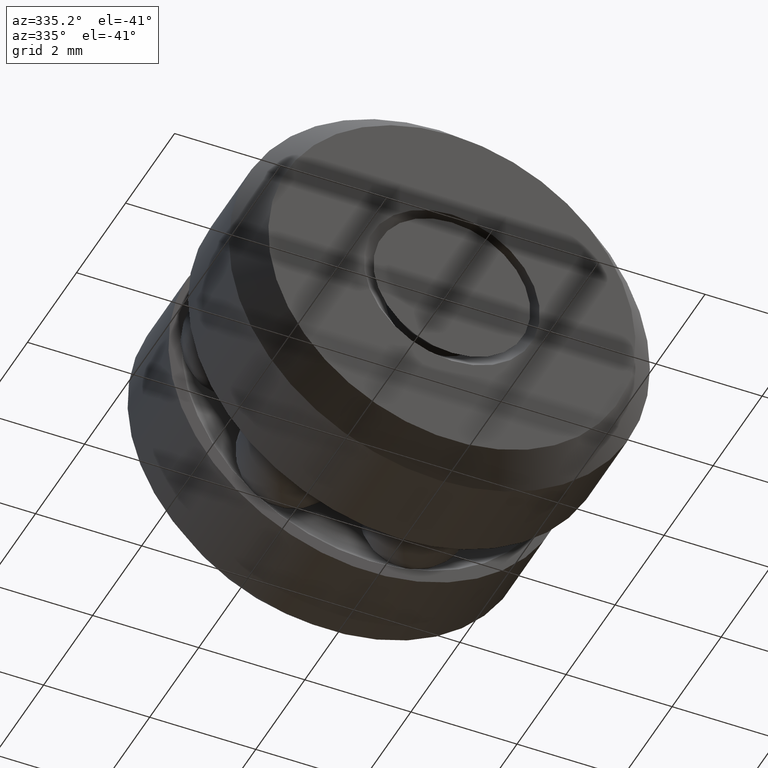
[diagram: clean part render]
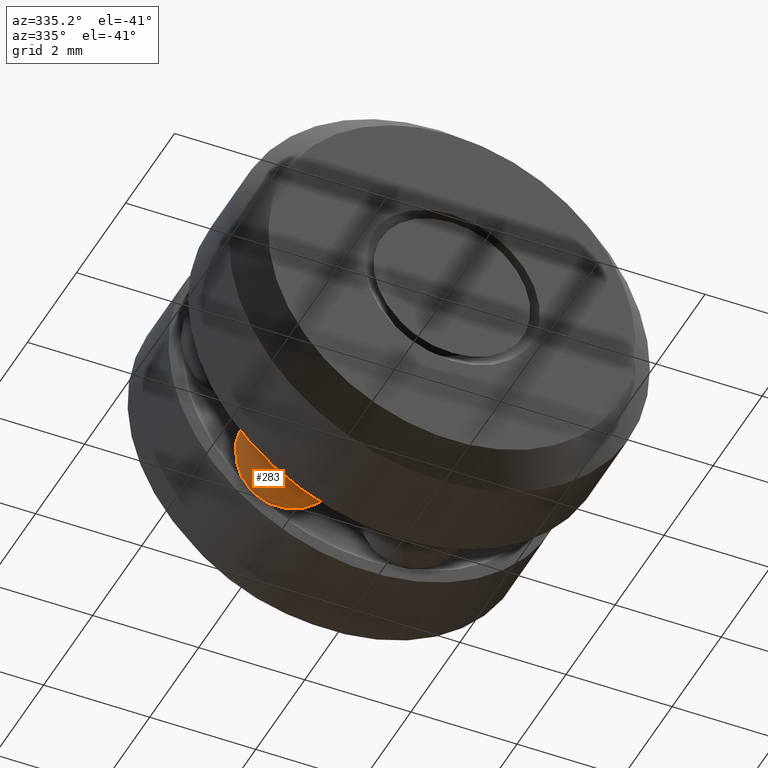
[diagram: same view with one face highlighted and labeled with its STEP entity id]
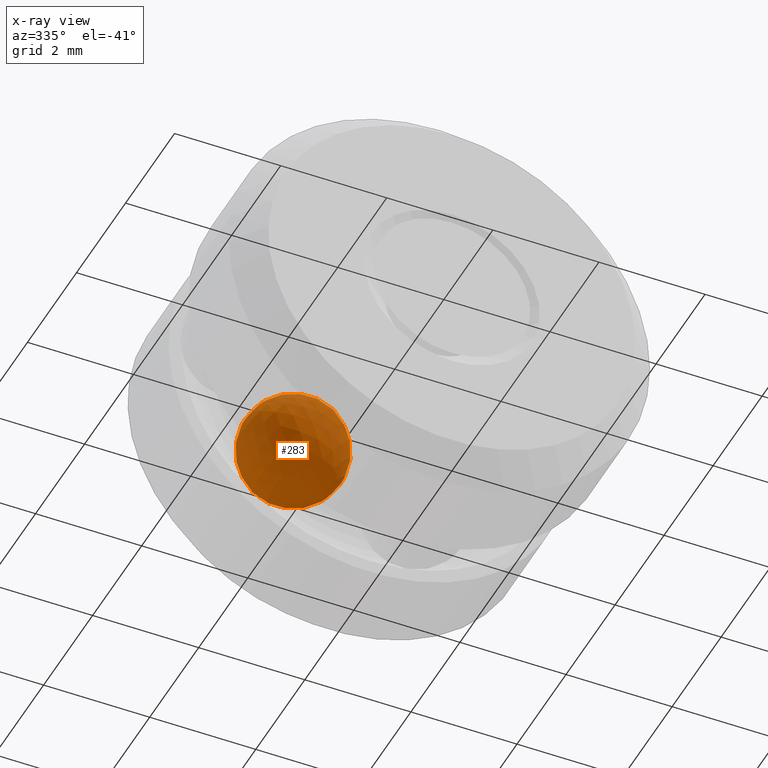
[diagram: x-ray of the same camera — body ghosted, the highlighted face saturated]
A machine part, auxiliary view. The second image highlights one B-rep face of the part: STEP entity #283.
The next image is the same camera in x-ray: the body ghosted, the highlighted face saturated — about 20% of this face is hidden behind the body in this view.
In plain terms, the highlighted spherical surface has radius 0.9906 mm.
Its self-contained STEP definition (entity closure, byte-faithful):
#58 = SPHERICAL_SURFACE ( 'NONE', #327, 0.03900000000000000000 ) ;
#78 = DIRECTION ( 'NONE',  ( 0.6234898018587431400, 0.0000000000000000000, 0.7818314824680221400 ) ) ;
#213 = DIRECTION ( 'NONE',  ( 0.7818314824680221400, 0.0000000000000000000, -0.6234898018587431400 ) ) ;
#283 = ADVANCED_FACE ( 'NONE', ( ), #58, .T. ) ;
#327 = AXIS2_PLACEMENT_3D ( 'NONE', #442, #213, #78 ) ;
#442 = CARTESIAN_POINT ( 'NONE',  ( -0.06749277105120894700, 0.1089999999999999900, -0.08463325797716339500 ) ) ;